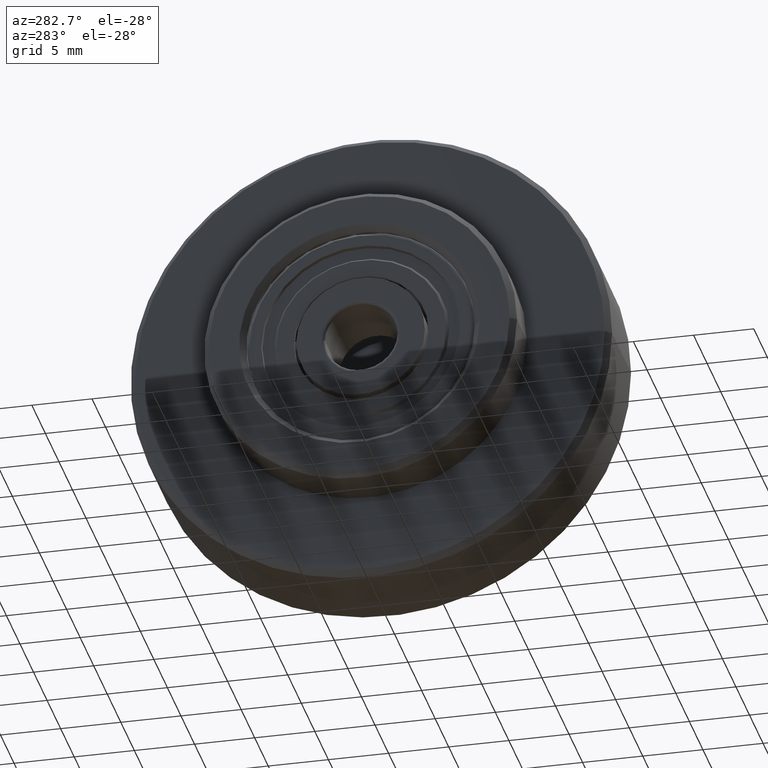
[diagram: clean part render]
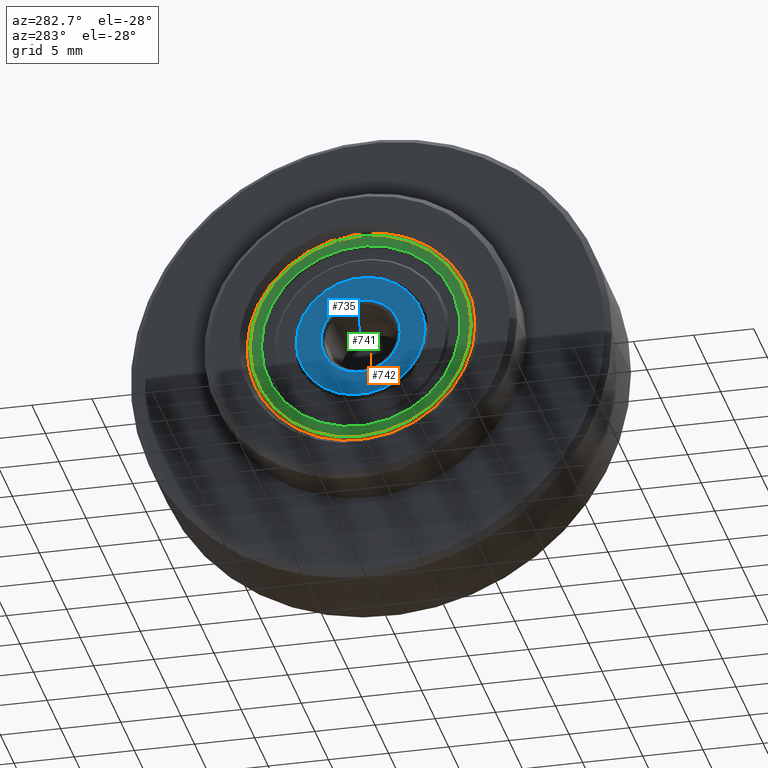
[diagram: same view with three faces highlighted in distinct colors, each labeled with its STEP entity id]
A machine part, auxiliary view with three faces highlighted in distinct colors.
Their STEP definitions:

[orange] entity #742 — the highlighted toroidal blend (fillet) surface has major radius 9.2 mm and minor (blend) radius 0.3 mm.
#28=TOROIDAL_SURFACE('',#876,9.2,0.3);
#139=FACE_BOUND('',#299,.T.);
#200=FACE_OUTER_BOUND('',#298,.T.);
#298=EDGE_LOOP('',(#629));
#299=EDGE_LOOP('',(#630));
#386=CIRCLE('',#875,9.2);
#387=CIRCLE('',#877,9.5);
#453=VERTEX_POINT('',#1327);
#454=VERTEX_POINT('',#1330);
#526=EDGE_CURVE('',#453,#453,#386,.T.);
#527=EDGE_CURVE('',#454,#454,#387,.T.);
#629=ORIENTED_EDGE('',*,*,#527,.F.);
#630=ORIENTED_EDGE('',*,*,#526,.T.);
#742=ADVANCED_FACE('',(#200,#139),#28,.T.);
#875=AXIS2_PLACEMENT_3D('',#1328,#1089,#1090);
#876=AXIS2_PLACEMENT_3D('',#1329,#1091,#1092);
#877=AXIS2_PLACEMENT_3D('',#1331,#1093,#1094);
#1089=DIRECTION('center_axis',(1.,0.,0.));
#1090=DIRECTION('ref_axis',(0.,1.,0.));
#1091=DIRECTION('center_axis',(1.,0.,0.));
#1092=DIRECTION('ref_axis',(0.,0.,-1.));
#1093=DIRECTION('center_axis',(1.,0.,0.));
#1094=DIRECTION('ref_axis',(0.,1.,0.));
#1327=CARTESIAN_POINT('',(0.,9.2,0.));
#1328=CARTESIAN_POINT('Origin',(0.,0.,0.));
#1329=CARTESIAN_POINT('Origin',(0.3,0.,0.));
#1330=CARTESIAN_POINT('',(0.3,9.5,0.));
#1331=CARTESIAN_POINT('Origin',(0.3,0.,0.));

[blue] entity #735 — the highlighted planar face has unit normal (-1, 0, 0).
#131=FACE_BOUND('',#285,.T.);
#194=FACE_OUTER_BOUND('',#284,.T.);
#284=EDGE_LOOP('',(#615));
#285=EDGE_LOOP('',(#616));
#373=CIRCLE('',#849,5.35);
#379=CIRCLE('',#861,3.3);
#440=VERTEX_POINT('',#1288);
#446=VERTEX_POINT('',#1306);
#513=EDGE_CURVE('',#440,#440,#373,.T.);
#519=EDGE_CURVE('',#446,#446,#379,.T.);
#615=ORIENTED_EDGE('',*,*,#513,.F.);
#616=ORIENTED_EDGE('',*,*,#519,.T.);
#694=PLANE('',#862);
#735=ADVANCED_FACE('',(#194,#131),#694,.T.);
#849=AXIS2_PLACEMENT_3D('',#1289,#1037,#1038);
#861=AXIS2_PLACEMENT_3D('',#1307,#1061,#1062);
#862=AXIS2_PLACEMENT_3D('',#1308,#1063,#1064);
#1037=DIRECTION('center_axis',(1.,0.,0.));
#1038=DIRECTION('ref_axis',(0.,1.,0.));
#1061=DIRECTION('center_axis',(1.,0.,0.));
#1062=DIRECTION('ref_axis',(0.,1.,0.));
#1063=DIRECTION('center_axis',(-1.,0.,0.));
#1064=DIRECTION('ref_axis',(0.,0.,1.));
#1288=CARTESIAN_POINT('',(0.,5.35,0.));
#1289=CARTESIAN_POINT('Origin',(0.,0.,0.));
#1306=CARTESIAN_POINT('',(-6.67347862103157E-021,3.3,0.));
#1307=CARTESIAN_POINT('Origin',(-6.67347862103157E-021,0.,0.));
#1308=CARTESIAN_POINT('Origin',(-3.33673931051579E-021,4.325,0.));

[green] entity #741 — the highlighted planar face has unit normal (-1, 0, 0).
#138=FACE_BOUND('',#297,.T.);
#199=FACE_OUTER_BOUND('',#296,.T.);
#296=EDGE_LOOP('',(#627));
#297=EDGE_LOOP('',(#628));
#385=CIRCLE('',#873,8.25);
#386=CIRCLE('',#875,9.2);
#452=VERTEX_POINT('',#1324);
#453=VERTEX_POINT('',#1327);
#525=EDGE_CURVE('',#452,#452,#385,.T.);
#526=EDGE_CURVE('',#453,#453,#386,.T.);
#627=ORIENTED_EDGE('',*,*,#526,.F.);
#628=ORIENTED_EDGE('',*,*,#525,.T.);
#697=PLANE('',#874);
#741=ADVANCED_FACE('',(#199,#138),#697,.T.);
#873=AXIS2_PLACEMENT_3D('',#1325,#1085,#1086);
#874=AXIS2_PLACEMENT_3D('',#1326,#1087,#1088);
#875=AXIS2_PLACEMENT_3D('',#1328,#1089,#1090);
#1085=DIRECTION('center_axis',(1.,0.,0.));
#1086=DIRECTION('ref_axis',(0.,1.,0.));
#1087=DIRECTION('center_axis',(-1.,0.,0.));
#1088=DIRECTION('ref_axis',(0.,0.,1.));
#1089=DIRECTION('center_axis',(1.,0.,0.));
#1090=DIRECTION('ref_axis',(0.,1.,0.));
#1324=CARTESIAN_POINT('',(0.,8.25,0.));
#1325=CARTESIAN_POINT('Origin',(0.,0.,0.));
#1326=CARTESIAN_POINT('Origin',(0.,8.725,0.));
#1327=CARTESIAN_POINT('',(0.,9.2,0.));
#1328=CARTESIAN_POINT('Origin',(0.,0.,0.));